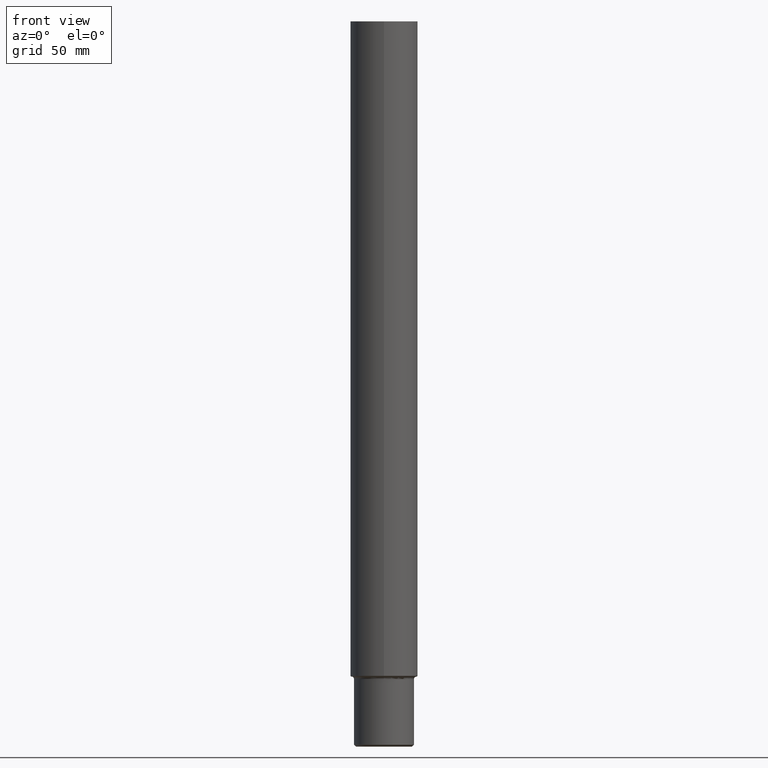
[diagram: clean part render]
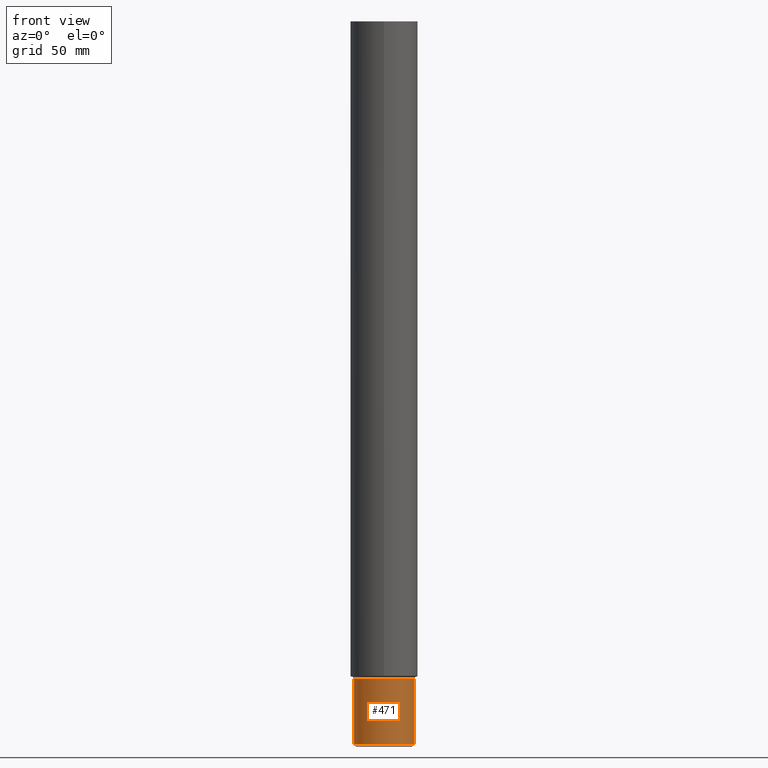
[diagram: same view with one face highlighted and labeled with its STEP entity id]
A machine part, front view. The second image highlights one B-rep face of the part: STEP entity #471.
In plain terms, the highlighted cylindrical surface (edge-blend (fillet) strip) has radius 12 mm, axis along (-0, -0, 1).
Its self-contained STEP definition (entity closure, byte-faithful):
#471=ADVANCED_FACE('NONE',(#1233),#1234,.T.);
#529=EDGE_CURVE('NONE',#847,#719,#1298,.T.);
#625=VERTEX_POINT('NONE',#1406);
#679=EDGE_CURVE('NONE',#753,#961,#1463,.T.);
#693=VERTEX_POINT('NONE',#1477);
#719=VERTEX_POINT('NONE',#1506);
#753=VERTEX_POINT('NONE',#1543);
#847=VERTEX_POINT('NONE',#1647);
#961=VERTEX_POINT('NONE',#1779);
#987=EDGE_CURVE('NONE',#625,#693,#1806,.T.);
#1001=EDGE_CURVE('NONE',#693,#847,#1824,.T.);
#1061=EDGE_CURVE('NONE',#719,#753,#1892,.T.);
#1091=EDGE_CURVE('NONE',#625,#961,#1923,.T.);
#1233=FACE_OUTER_BOUND('',#2100,.T.);
#1234=CYLINDRICAL_SURFACE('',#2101,12.0);
#1298=LINE('',#2209,#2210);
#1406=CARTESIAN_POINT('',(-12.0,1.33226277611119E-014,0.75000000000002));
#1463=CIRCLE('',#2482,12.0);
#1477=CARTESIAN_POINT('',(2.85751725722007E-014,-12.0,0.75000000000002));
#1506=CARTESIAN_POINT('',(12.0,-1.18531001365251E-014,27.0));
#1543=CARTESIAN_POINT('',(3.0003341012548E-015,-12.0,27.0));
#1647=CARTESIAN_POINT('',(12.0,-1.18531001365251E-014,0.75000000000002));
#1779=CARTESIAN_POINT('',(-12.0,1.33226277611119E-014,27.0));
#1806=CIRCLE('',#2950,12.0);
#1824=CIRCLE('',#2974,12.0);
#1892=CIRCLE('',#3087,12.0);
#1923=LINE('',#3159,#3160);
#2100=EDGE_LOOP('',(#3341,#3342,#3343,#3344,#3345,#3346));
#2101=AXIS2_PLACEMENT_3D('',#3347,#3348,#3349);
#2209=CARTESIAN_POINT('',(12.0,-1.18531001365251E-014,1.38777878078145E-014));
#2210=VECTOR('',#3425,1000.0);
#2482=AXIS2_PLACEMENT_3D('',#3623,#3624,#3625);
#2950=AXIS2_PLACEMENT_3D('',#4041,#4042,#4043);
#2974=AXIS2_PLACEMENT_3D('',#4078,#4079,#4080);
#3087=AXIS2_PLACEMENT_3D('',#4164,#4165,#4166);
#3159=CARTESIAN_POINT('',(-12.0,1.33226277611119E-014,1.38777878078145E-014));
#3160=VECTOR('',#4188,1000.0);
#3341=ORIENTED_EDGE('',*,*,#1091,.F.);
#3342=ORIENTED_EDGE('',*,*,#987,.T.);
#3343=ORIENTED_EDGE('',*,*,#1001,.T.);
#3344=ORIENTED_EDGE('',*,*,#529,.T.);
#3345=ORIENTED_EDGE('',*,*,#1061,.T.);
#3346=ORIENTED_EDGE('',*,*,#679,.T.);
#3347=CARTESIAN_POINT('',(0.0,0.0,1.38777878078145E-014));
#3348=DIRECTION('',(-0.0,-0.0,1.0));
#3349=DIRECTION('',(1.0,-9.87758344710421E-016,0.0));
#3425=DIRECTION('',(0.0,0.0,1.0));
#3623=CARTESIAN_POINT('',(5.95307734443278E-031,-4.86105655000082E-015,27.0));
#3624=DIRECTION('',(-3.54070592043461E-032,2.89120579329468E-016,-1.0));
#3625=DIRECTION('',(-1.22464679914735E-016,1.0,2.89120579329468E-016));
#4041=CARTESIAN_POINT('',(0.0,0.0,0.75000000000002));
#4042=DIRECTION('',(0.0,0.0,1.0));
#4043=DIRECTION('',(2.50372501639896E-015,-1.0,-0.0));
#4078=CARTESIAN_POINT('',(0.0,0.0,0.75000000000002));
#4079=DIRECTION('',(0.0,0.0,1.0));
#4080=DIRECTION('',(2.50372501639896E-015,-1.0,-0.0));
#4164=CARTESIAN_POINT('',(5.95307734443278E-031,-4.86105655000082E-015,27.0));
#4165=DIRECTION('',(-3.54070592043461E-032,2.89120579329468E-016,-1.0));
#4166=DIRECTION('',(-1.22464679914735E-016,1.0,2.89120579329468E-016));
#4188=DIRECTION('',(0.0,0.0,1.0));